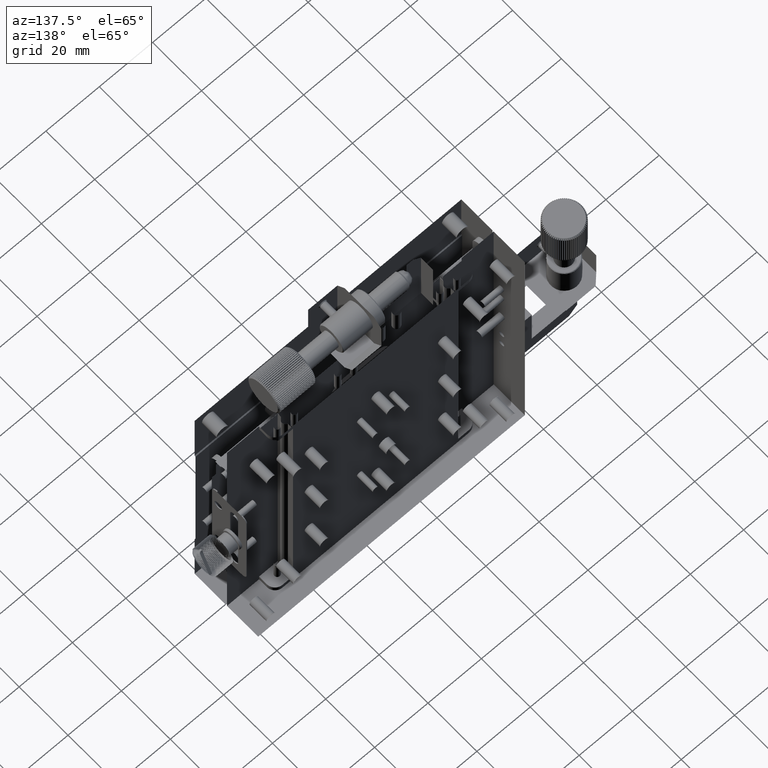
[diagram: clean part render]
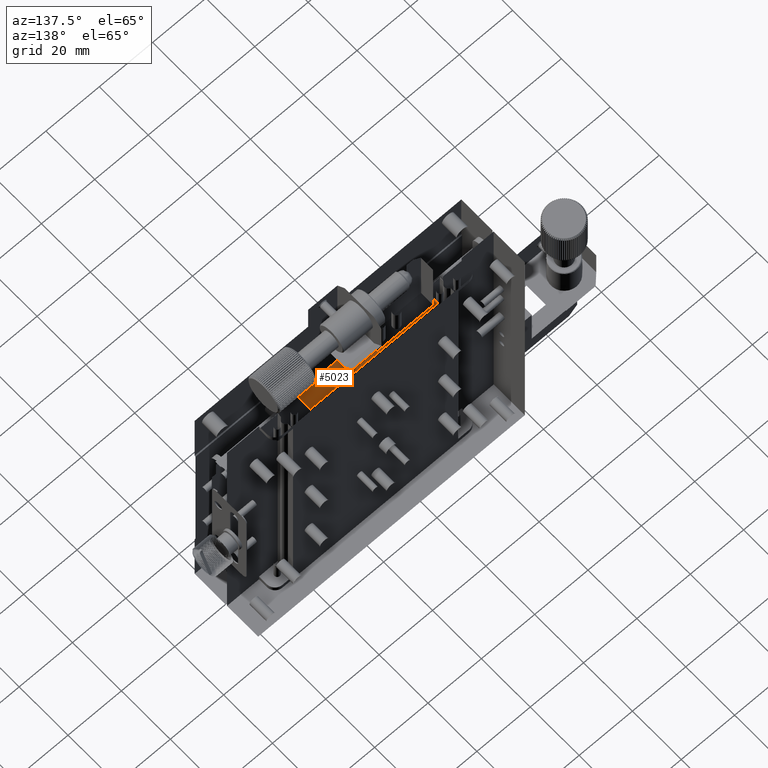
[diagram: same view with one face highlighted and labeled with its STEP entity id]
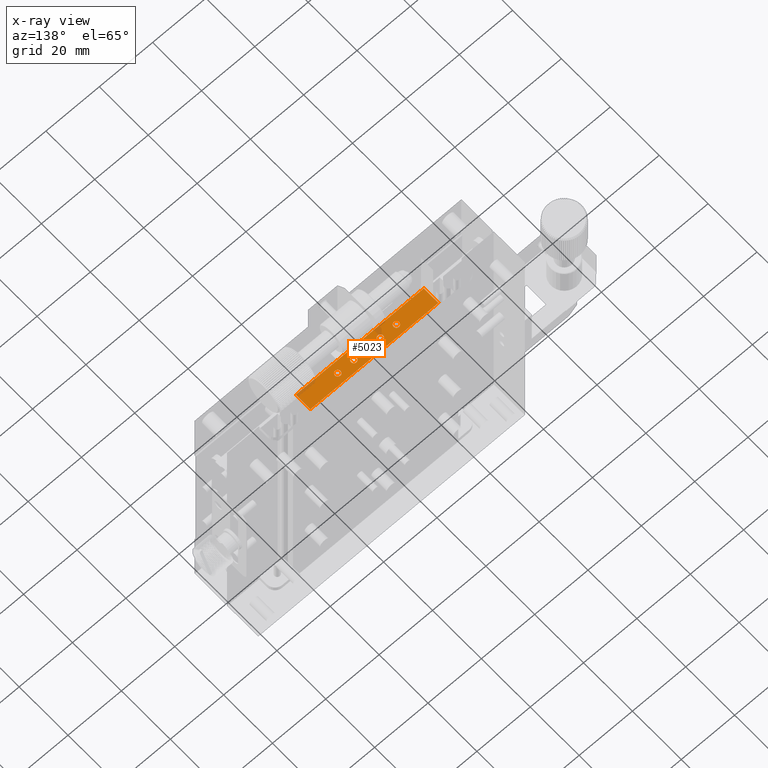
[diagram: x-ray of the same camera — body ghosted, the highlighted face saturated]
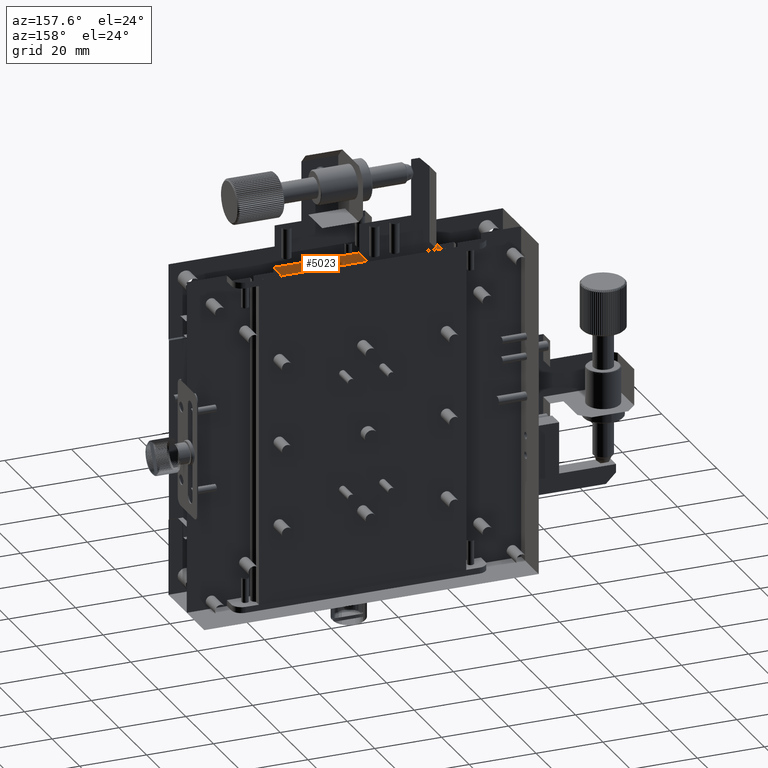
[diagram: same view with one face highlighted and labeled with its STEP entity id]
A machine part, auxiliary view. The second image highlights one B-rep face of the part: STEP entity #5023.
The next image is the same camera in x-ray: the body ghosted, the highlighted face saturated — about 4% of this face is hidden behind the body in this view.
A second angle (auxiliary view) of the same face is appended — the face is thin or edge-on in the first view.
In plain terms, the highlighted planar face has unit normal (0, 0, 1).
Its self-contained STEP definition (entity closure, byte-faithful):
#174 = LINE ( 'NONE', #25759, #21433 ) ;
#206 = CARTESIAN_POINT ( 'NONE',  ( -14.35932492328678123, 8.461813842482081682, 50.00000000000000000 ) ) ;
#230 = CARTESIAN_POINT ( 'NONE',  ( -8.437289163982038431, 8.854237392471311807, 49.99999999999999289 ) ) ;
#415 = FACE_BOUND ( 'NONE', #45608, .T. ) ;
#740 = EDGE_CURVE ( 'NONE', #42010, #20652, #174, .T. ) ;
#962 = CARTESIAN_POINT ( 'NONE',  ( -8.459295662923645764, 8.903800010002630216, 50.00000000000000711 ) ) ;
#1079 = CARTESIAN_POINT ( 'NONE',  ( -10.38533592614975554, 8.205528546687931524, 50.00000000000000000 ) ) ;
#1210 = CARTESIAN_POINT ( 'NONE',  ( -15.64078080533845139, 9.462757212372771676, 49.99999999999999289 ) ) ;
#1330 = CARTESIAN_POINT ( 'NONE',  ( -10.00923350665552647, 7.637258407699890839, 49.99999999999998579 ) ) ;
#1699 = CARTESIAN_POINT ( 'NONE',  ( -15.77672714999384063, 9.408858055908348561, 50.00000000000000000 ) ) ;
#1925 = CARTESIAN_POINT ( 'NONE',  ( -14.79027600530556796, 7.621106938102423456, 50.00000000000001421 ) ) ;
#1958 = CARTESIAN_POINT ( 'NONE',  ( -14.87574251884171517, 9.362948662365740304, 50.00000000000000711 ) ) ;
#2198 = CARTESIAN_POINT ( 'NONE',  ( -14.43728916398203843, 8.854237392471242529, 50.00000000000000000 ) ) ;
#2317 = VERTEX_POINT ( 'NONE', #38201 ) ;
#3402 = EDGE_CURVE ( 'NONE', #20652, #41781, #8409, .T. ) ;
#3843 = CARTESIAN_POINT ( 'NONE',  ( -15.70052241587792707, 7.486637596779109671, 50.00000000000000711 ) ) ;
#3894 = VERTEX_POINT ( 'NONE', #41481 ) ;
#3932 = CARTESIAN_POINT ( 'NONE',  ( -10.34384520546391251, 8.822700253889923516, 50.00000000000000711 ) ) ;
#4287 = CARTESIAN_POINT ( 'NONE',  ( -8.974306938210492746, 7.522225059223291765, 50.00000000000000000 ) ) ;
#4529 = CARTESIAN_POINT ( 'NONE',  ( -9.449321264623060657, 7.436780206478159627, 50.00000000000000000 ) ) ;
#4614 = CARTESIAN_POINT ( 'NONE',  ( 7.640675076713216995, 8.461813842482081682, 50.00000000000000000 ) ) ;
#4658 = CARTESIAN_POINT ( 'NONE',  ( -9.319328581951623391, 9.486847478486160057, 50.00000000000000711 ) ) ;
#4773 = CARTESIAN_POINT ( 'NONE',  ( -8.424804641109576053, 8.100927431074232743, 49.99999999999999289 ) ) ;
#5023 = ADVANCED_FACE ( 'NONE', ( #415, #11739, #10793, #22062, #14718 ), #11017, .F. ) ;
#5026 = CARTESIAN_POINT ( 'NONE',  ( -8.359324923286781228, 8.461813842482081682, 50.00000000000000000 ) ) ;
#5366 = CARTESIAN_POINT ( 'NONE',  ( -14.55976948850418573, 7.836905259113716937, 50.00000000000000711 ) ) ;
#5818 = DIRECTION ( 'NONE',  ( -0.000000000000000000, -0.000000000000000000, -1.000000000000000000 ) ) ;
#5825 = CARTESIAN_POINT ( 'NONE',  ( -28.38432492328676915, 11.46181384248208168, 50.00000000000000000 ) ) ;
#5858 = CARTESIAN_POINT ( 'NONE',  ( -14.39455876283175684, 8.191676105698782351, 50.00000000000000711 ) ) ;
#5892 = CARTESIAN_POINT ( 'NONE',  ( -15.22341919128706778, 9.477876831562856097, 50.00000000000000000 ) ) ;
#6072 = DIRECTION ( 'NONE',  ( 1.000000000000000000, 0.000000000000000000, -0.000000000000000000 ) ) ;
#6539 = DIRECTION ( 'NONE',  ( -0.000000000000000000, 1.000000000000000000, 0.000000000000000000 ) ) ;
#7294 = CARTESIAN_POINT ( 'NONE',  ( -15.73117127831653583, 7.497145396528023475, 50.00000000000000711 ) ) ;
#7457 = ORIENTED_EDGE ( 'NONE', *, *, #47652, .F. ) ;
#7540 = CARTESIAN_POINT ( 'NONE',  ( -16.33136068259150520, 8.069390292493025640, 49.99999999999998579 ) ) ;
#7629 = CARTESIAN_POINT ( 'NONE',  ( -10.37409108374178501, 8.731951579264732644, 49.99999999999999289 ) ) ;
#7767 = ORIENTED_EDGE ( 'NONE', *, *, #32719, .F. ) ;
#7856 = CARTESIAN_POINT ( 'NONE',  ( -9.826311090806777671, 9.386843102845464415, 50.00000000000001421 ) ) ;
#8114 = CARTESIAN_POINT ( 'NONE',  ( -10.40932492328675707, 8.461813842482081682, 50.00000000000000000 ) ) ;
#8222 = CARTESIAN_POINT ( 'NONE',  ( -8.368320797213158357, 8.300759206457602346, 50.00000000000000711 ) ) ;
#8409 = LINE ( 'NONE', #13069, #41218 ) ;
#8912 = AXIS2_PLACEMENT_3D ( 'NONE', #20808, #5818, #9992 ) ;
#9297 = CARTESIAN_POINT ( 'NONE',  ( -14.48319010340335211, 7.953231438037009049, 50.00000000000000711 ) ) ;
#9539 = CARTESIAN_POINT ( 'NONE',  ( -14.94233875576645509, 7.536784582118719378, 50.00000000000000711 ) ) ;
#9573 = CARTESIAN_POINT ( 'NONE',  ( -14.35932492328677768, 8.592333445843367556, 49.99999999999998579 ) ) ;
#9791 = CARTESIAN_POINT ( 'NONE',  ( -15.25433224061417548, 7.436881114489954925, 49.99999999999997868 ) ) ;
#9992 = DIRECTION ( 'NONE',  ( 1.000000000000000000, 0.000000000000000000, 0.000000000000000000 ) ) ;
#10662 = EDGE_LOOP ( 'NONE', ( #7457, #38523 ) ) ;
#10793 = FACE_BOUND ( 'NONE', #10662, .T. ) ;
#11017 = PLANE ( 'NONE',  #46023 ) ;
#11224 = CARTESIAN_POINT ( 'NONE',  ( -16.15904730767625352, 7.786914883798659481, 50.00000000000000000 ) ) ;
#11317 = CARTESIAN_POINT ( 'NONE',  ( -9.640780805338010850, 9.462757212372771676, 50.00000000000000000 ) ) ;
#11562 = CARTESIAN_POINT ( 'NONE',  ( -8.359324923286781228, 8.461813842482081682, 50.00000000000000000 ) ) ;
#11739 = FACE_BOUND ( 'NONE', #15932, .T. ) ;
#11899 = CARTESIAN_POINT ( 'NONE',  ( -10.32391370654542762, 8.051795857405616985, 49.99999999999999289 ) ) ;
#12040 = CARTESIAN_POINT ( 'NONE',  ( -10.28545974317044021, 8.970396246927581529, 50.00000000000002132 ) ) ;
#12398 = CARTESIAN_POINT ( 'NONE',  ( -10.33136068259149987, 8.069390292492823136, 50.00000000000000711 ) ) ;
#12522 = CARTESIAN_POINT ( 'NONE',  ( -14.45929566292374524, 8.903800010002637322, 50.00000000000001421 ) ) ;
#12736 = CARTESIAN_POINT ( 'NONE',  ( -14.40917705796211479, 8.145544556879670495, 49.99999999999999289 ) ) ;
#13019 = AXIS2_PLACEMENT_3D ( 'NONE', #13892, #43861, #29095 ) ;
#13069 = CARTESIAN_POINT ( 'NONE',  ( -28.38432492328676915, 4.961813842482081682, 50.00000000000000000 ) ) ;
#13231 = ORIENTED_EDGE ( 'NONE', *, *, #33737, .F. ) ;
#13254 = CARTESIAN_POINT ( 'NONE',  ( -16.40032904936039060, 8.622868478505210987, 50.00000000000000000 ) ) ;
#13347 = VECTOR ( 'NONE', #6072, 1000.000000000000000 ) ;
#13434 = VERTEX_POINT ( 'NONE', #44711 ) ;
#13503 = CARTESIAN_POINT ( 'NONE',  ( -14.35932492328678123, 8.461813842482081682, 50.00000000000000000 ) ) ;
#13674 = EDGE_LOOP ( 'NONE', ( #38569 ) ) ;
#13892 = CARTESIAN_POINT ( 'NONE',  ( 0.6156750767132299629, 8.461813842482081682, 50.00000000000000000 ) ) ;
#14134 = B_SPLINE_CURVE_WITH_KNOTS ( 'NONE', 3,
 ( #42715, #31647, #47366, #5858, #12736, #31897, #46641, #9297, #5366, #28693, #1925, #16919, #9539, #32624, #20840, #47125, #9791, #32852, #40947, #25224, #3843, #7294, #14187, #41196, #43917, #11224, #44637, #29158, #44876, #22273, #7540, #33088, #21793, #36537 ),
 .UNSPECIFIED., .F., .F.,
 ( 4, 1, 1, 2, 2, 2, 1, 1, 2, 2, 2, 1, 1, 2, 2, 2, 1, 1, 2, 2, 4 ),
 ( 0.000000000000000000, 0.06250000000000588418, 0.09375000000000865974, 0.1093750000000100475, 0.1250000000000114353, 0.2500000000000097145, 0.3125000000000091593, 0.3437500000000084377, 0.3593750000000085487, 0.3750000000000087153, 0.5000000000000098810, 0.5625000000000104361, 0.5937500000000123235, 0.6093750000000133227, 0.6250000000000142109, 0.7500000000000071054, 0.8125000000000041078, 0.8437500000000016653, 0.8593750000000013323, 0.8750000000000008882, 1.000000000000000000 ),
 .UNSPECIFIED. ) ;
#14187 = CARTESIAN_POINT ( 'NONE',  ( -15.74521133469454170, 7.502293560304843290, 49.99999999999999289 ) ) ;
#14718 = FACE_OUTER_BOUND ( 'NONE', #16225, .T. ) ;
#14940 = DIRECTION ( 'NONE',  ( 0.000000000000000000, 0.000000000000000000, 1.000000000000000000 ) ) ;
#14993 = CARTESIAN_POINT ( 'NONE',  ( -9.873510639141024114, 9.363888520937219795, 50.00000000000000711 ) ) ;
#15238 = CARTESIAN_POINT ( 'NONE',  ( -8.383313920423782761, 8.718099138276448556, 50.00000000000000000 ) ) ;
#15353 = CARTESIAN_POINT ( 'NONE',  ( -8.359324923286783005, 8.396732413132445672, 50.00000000000001421 ) ) ;
#15426 = DIRECTION ( 'NONE',  ( 1.000000000000000000, 0.000000000000000000, -0.000000000000000000 ) ) ;
#15482 = CARTESIAN_POINT ( 'NONE',  ( -8.609602538896924173, 9.136712801165367992, 50.00000000000000711 ) ) ;
#15593 = CARTESIAN_POINT ( 'NONE',  ( -9.745211334694641181, 7.502293560304884146, 50.00000000000001421 ) ) ;
#15828 = CARTESIAN_POINT ( 'NONE',  ( -10.40932492328675529, 8.331294239121563194, 49.99999999999999289 ) ) ;
#15932 = EDGE_LOOP ( 'NONE', ( #13231, #17959 ) ) ;
#15965 = CARTESIAN_POINT ( 'NONE',  ( -8.444736140028144433, 8.871831827558573025, 50.00000000000000711 ) ) ;
#16073 = CARTESIAN_POINT ( 'NONE',  ( -9.731171278316534057, 7.497145396528026140, 50.00000000000001421 ) ) ;
#16225 = EDGE_LOOP ( 'NONE', ( #23211, #30914, #29437, #7767 ) ) ;
#16319 = CARTESIAN_POINT ( 'NONE',  ( -10.15904730767669228, 7.786914883798874421, 50.00000000000000711 ) ) ;
#16695 = CARTESIAN_POINT ( 'NONE',  ( -16.37409108374178857, 8.731951579264375596, 50.00000000000000000 ) ) ;
#16919 = CARTESIAN_POINT ( 'NONE',  ( -14.89513920743203279, 7.559739164026977321, 49.99999999999999289 ) ) ;
#16950 = CARTESIAN_POINT ( 'NONE',  ( -14.60960253889704674, 9.136712801165375097, 49.99999999999999289 ) ) ;
#17959 = ORIENTED_EDGE ( 'NONE', *, *, #30972, .F. ) ;
#18930 = CARTESIAN_POINT ( 'NONE',  ( -9.037478568257549583, 9.426482288436215384, 50.00000000000002842 ) ) ;
#19118 = CIRCLE ( 'NONE', #8912, 1.024999999999987699 ) ;
#19279 = CARTESIAN_POINT ( 'NONE',  ( -9.127869041236889913, 7.460870472591067504, 50.00000000000000711 ) ) ;
#19523 = CARTESIAN_POINT ( 'NONE',  ( -9.545230655287900490, 7.445750853401582603, 50.00000000000000000 ) ) ;
#19646 = CARTESIAN_POINT ( 'NONE',  ( -9.023438511878765667, 9.421334124659150433, 50.00000000000001421 ) ) ;
#20024 = CARTESIAN_POINT ( 'NONE',  ( -8.359324923286781228, 8.461813842482081682, 50.00000000000000000 ) ) ;
#20623 = CARTESIAN_POINT ( 'NONE',  ( -15.51431760595772680, 9.486746570473886919, 50.00000000000000711 ) ) ;
#20652 = VERTEX_POINT ( 'NONE', #5825 ) ;
#20663 = B_SPLINE_CURVE_WITH_KNOTS ( 'NONE', 3,
 ( #39540, #31431, #13254, #16695, #35850, #31196, #46910, #46182, #35356, #43480, #32174, #23806, #24531, #27748, #1699, #1210, #20623, #20872, #5892, #34867, #39287, #27491, #35607, #1958, #31682, #16950, #27997, #47156, #12522, #31925, #2198, #43232, #9573, #13503 ),
 .UNSPECIFIED., .F., .F.,
 ( 4, 1, 1, 2, 2, 2, 1, 1, 2, 2, 2, 1, 1, 2, 2, 2, 1, 1, 2, 2, 4 ),
 ( 0.000000000000000000, 0.06249999999999886202, 0.09374999999999829303, 0.1093749999999983347, 0.1249999999999983902, 0.2500000000000033307, 0.3125000000000063283, 0.3437500000000074385, 0.3593750000000083267, 0.3750000000000092149, 0.5000000000000077716, 0.5625000000000062172, 0.5937500000000055511, 0.6093750000000057732, 0.6250000000000059952, 0.7500000000000086597, 0.8125000000000094369, 0.8437500000000102141, 0.8593750000000098810, 0.8750000000000095479, 1.000000000000000000 ),
 .UNSPECIFIED. ) ;
#20714 = EDGE_CURVE ( 'NONE', #41781, #13434, #48051, .T. ) ;
#20808 = CARTESIAN_POINT ( 'NONE',  ( 6.615675076713229075, 8.461813842482081682, 50.00000000000000000 ) ) ;
#20840 = CARTESIAN_POINT ( 'NONE',  ( -14.99192269657947740, 7.514769629055856548, 50.00000000000000000 ) ) ;
#20872 = CARTESIAN_POINT ( 'NONE',  ( -15.31932858195129477, 9.486847478486160057, 50.00000000000000000 ) ) ;
#21420 = EDGE_CURVE ( 'NONE', #2317, #43505, #20663, .T. ) ;
#21433 = VECTOR ( 'NONE', #33609, 1000.000000000000000 ) ;
#21793 = CARTESIAN_POINT ( 'NONE',  ( -16.40932492328676062, 8.331294239119905853, 49.99999999999998579 ) ) ;
#22062 = FACE_BOUND ( 'NONE', #13674, .T. ) ;
#22100 = CARTESIAN_POINT ( 'NONE',  ( -10.40932492328675707, 8.461813842482081682, 50.00000000000000000 ) ) ;
#22273 = CARTESIAN_POINT ( 'NONE',  ( -16.32391370654523044, 8.051795857405524615, 50.00000000000000000 ) ) ;
#22549 = B_SPLINE_CURVE_WITH_KNOTS ( 'NONE', 3,
 ( #8114, #33654, #27255, #7629, #37588, #42245, #3932, #12040, #22605, #38300, #26276, #14993, #7856, #44975, #45208, #11317, #34377, #4658, #23083, #30438, #41285, #18930, #19646, #30202, #42004, #15482, #34615, #33894, #962, #15965, #230, #15238, #37348, #11562 ),
 .UNSPECIFIED., .F., .F.,
 ( 4, 1, 1, 2, 2, 2, 1, 1, 2, 2, 2, 1, 1, 2, 2, 2, 1, 1, 2, 2, 4 ),
 ( 0.000000000000000000, 0.06249999999999522604, 0.09374999999999300559, 0.1093749999999927003, 0.1249999999999923950, 0.2499999999999913958, 0.3124999999999914513, 0.3437499999999910627, 0.3593749999999911737, 0.3749999999999913403, 0.4999999999999900080, 0.5624999999999893419, 0.5937499999999891198, 0.6093749999999896749, 0.6249999999999901190, 0.7499999999999942268, 0.8124999999999952260, 0.8437499999999956701, 0.8593749999999960032, 0.8749999999999962252, 1.000000000000000000 ),
 .UNSPECIFIED. ) ;
#22605 = CARTESIAN_POINT ( 'NONE',  ( -10.20888035807008976, 9.086722425850394913, 50.00000000000000000 ) ) ;
#22703 = CARTESIAN_POINT ( 'NONE',  ( -9.654350982052561037, 7.472003534771902267, 50.00000000000000000 ) ) ;
#23083 = CARTESIAN_POINT ( 'NONE',  ( -9.223419191287639762, 9.477876831562856097, 50.00000000000000711 ) ) ;
#23193 = CARTESIAN_POINT ( 'NONE',  ( -8.790276005305893037, 7.621106938102292006, 50.00000000000000000 ) ) ;
#23211 = ORIENTED_EDGE ( 'NONE', *, *, #20714, .F. ) ;
#23806 = CARTESIAN_POINT ( 'NONE',  ( -15.87351063914172578, 9.363888520936821891, 50.00000000000000711 ) ) ;
#24531 = CARTESIAN_POINT ( 'NONE',  ( -15.82631109080722531, 9.386843102845205067, 49.99999999999999289 ) ) ;
#24713 = CARTESIAN_POINT ( 'NONE',  ( -4.384324923286770037, 5.461813842482080794, 50.00000000000000000 ) ) ;
#25224 = CARTESIAN_POINT ( 'NONE',  ( -15.65435098205256104, 7.472003534771901379, 50.00000000000000000 ) ) ;
#25514 = VERTEX_POINT ( 'NONE', #20024 ) ;
#25759 = CARTESIAN_POINT ( 'NONE',  ( -38.21957479672279590, 11.46181384248208168, 50.00000000000000000 ) ) ;
#26238 = VERTEX_POINT ( 'NONE', #4614 ) ;
#26276 = CARTESIAN_POINT ( 'NONE',  ( -9.978373841267334399, 9.302520746861784318, 50.00000000000000000 ) ) ;
#27255 = CARTESIAN_POINT ( 'NONE',  ( -10.40032904936038172, 8.622868478505692380, 49.99999999999999289 ) ) ;
#27491 = CARTESIAN_POINT ( 'NONE',  ( -15.03747856825739326, 9.426482288436213608, 50.00000000000000711 ) ) ;
#27637 = B_SPLINE_CURVE_WITH_KNOTS ( 'NONE', 3,
 ( #5026, #15353, #8222, #34732, #37935, #42613, #4773, #46290, #30318, #34981, #23193, #38175, #42360, #4287, #38416, #19279, #45806, #4529, #19523, #22703, #34249, #16073, #15593, #30549, #1330, #16319, #31304, #45551, #34491, #11899, #12398, #1079, #15828, #30799 ),
 .UNSPECIFIED., .F., .F.,
 ( 4, 1, 1, 2, 2, 2, 1, 1, 2, 2, 2, 1, 1, 2, 2, 2, 1, 1, 2, 2, 4 ),
 ( 0.000000000000000000, 0.06250000000000384415, 0.09375000000000593969, 0.1093750000000061617, 0.1250000000000063838, 0.2500000000000116573, 0.3125000000000150990, 0.3437500000000159872, 0.3593750000000163758, 0.3750000000000167644, 0.5000000000000195399, 0.5625000000000200950, 0.5937500000000203171, 0.6093750000000195399, 0.6250000000000186517, 0.7500000000000150990, 0.8125000000000131006, 0.8437500000000116573, 0.8593750000000106581, 0.8750000000000096589, 1.000000000000000000 ),
 .UNSPECIFIED. ) ;
#27748 = CARTESIAN_POINT ( 'NONE',  ( -15.79434290836321075, 9.401402625740702845, 50.00000000000000000 ) ) ;
#27997 = CARTESIAN_POINT ( 'NONE',  ( -14.54361801890780370, 9.055862760463783800, 50.00000000000001421 ) ) ;
#28693 = CARTESIAN_POINT ( 'NONE',  ( -14.70942596460376173, 7.687091458091960483, 50.00000000000000711 ) ) ;
#28810 = ORIENTED_EDGE ( 'NONE', *, *, #46498, .F. ) ;
#29095 = DIRECTION ( 'NONE',  ( 1.000000000000000000, 0.000000000000000000, 0.000000000000000000 ) ) ;
#29158 = CARTESIAN_POINT ( 'NONE',  ( -16.28639960174103862, 7.972628126626805312, 50.00000000000000000 ) ) ;
#29437 = ORIENTED_EDGE ( 'NONE', *, *, #740, .F. ) ;
#30202 = CARTESIAN_POINT ( 'NONE',  ( -8.875742518842560713, 9.362948662366353147, 49.99999999999999289 ) ) ;
#30318 = CARTESIAN_POINT ( 'NONE',  ( -8.559769488503807366, 7.836905259113865263, 50.00000000000000000 ) ) ;
#30438 = CARTESIAN_POINT ( 'NONE',  ( -9.114298864522481836, 9.451624150192467155, 50.00000000000000711 ) ) ;
#30549 = CARTESIAN_POINT ( 'NONE',  ( -9.892907327732034517, 7.560679022598861820, 50.00000000000000000 ) ) ;
#30799 = CARTESIAN_POINT ( 'NONE',  ( -10.40932492328675707, 8.461813842482081682, 50.00000000000000000 ) ) ;
#30914 = ORIENTED_EDGE ( 'NONE', *, *, #3402, .F. ) ;
#30972 = EDGE_CURVE ( 'NONE', #36227, #25514, #22549, .T. ) ;
#31196 = CARTESIAN_POINT ( 'NONE',  ( -16.34897760236398412, 8.808700082517733065, 50.00000000000000000 ) ) ;
#31304 = CARTESIAN_POINT ( 'NONE',  ( -10.22503182766608276, 7.867764924500526114, 50.00000000000000000 ) ) ;
#31431 = CARTESIAN_POINT ( 'NONE',  ( -16.40932492328676418, 8.526895271830948531, 50.00000000000000711 ) ) ;
#31647 = CARTESIAN_POINT ( 'NONE',  ( -14.35932492328678123, 8.396732413132449224, 50.00000000000002132 ) ) ;
#31682 = CARTESIAN_POINT ( 'NONE',  ( -14.75941633991761748, 9.286369277264105548, 50.00000000000000000 ) ) ;
#31897 = CARTESIAN_POINT ( 'NONE',  ( -14.41967224420955418, 8.114927602446066146, 49.99999999999999289 ) ) ;
#31925 = CARTESIAN_POINT ( 'NONE',  ( -14.44473614002819950, 8.871831827558578354, 50.00000000000000000 ) ) ;
#32174 = CARTESIAN_POINT ( 'NONE',  ( -15.97837384126827054, 9.302520746861249634, 50.00000000000000711 ) ) ;
#32624 = CARTESIAN_POINT ( 'NONE',  ( -14.97430693821040926, 7.522225059223328181, 50.00000000000000711 ) ) ;
#32719 = EDGE_CURVE ( 'NONE', #13434, #42010, #40180, .T. ) ;
#32852 = CARTESIAN_POINT ( 'NONE',  ( -15.44932126462306243, 7.436780206478156963, 49.99999999999998579 ) ) ;
#33088 = CARTESIAN_POINT ( 'NONE',  ( -16.38533592614976087, 8.205528546686268854, 49.99999999999999289 ) ) ;
#33609 = DIRECTION ( 'NONE',  ( -1.000000000000000000, -0.000000000000000000, -0.000000000000000000 ) ) ;
#33654 = CARTESIAN_POINT ( 'NONE',  ( -10.40932492328675885, 8.526895271831220313, 50.00000000000002132 ) ) ;
#33737 = EDGE_CURVE ( 'NONE', #25514, #36227, #27637, .T. ) ;
#33894 = CARTESIAN_POINT ( 'NONE',  ( -8.482250244832028940, 8.950999558337176865, 50.00000000000000000 ) ) ;
#34164 = CIRCLE ( 'NONE', #13019, 1.024999999999988587 ) ;
#34249 = CARTESIAN_POINT ( 'NONE',  ( -9.700522415877925297, 7.486637596779108783, 50.00000000000000711 ) ) ;
#34377 = CARTESIAN_POINT ( 'NONE',  ( -9.514317605957067769, 9.486746570473883367, 49.99999999999998579 ) ) ;
#34491 = CARTESIAN_POINT ( 'NONE',  ( -10.30935418364996359, 8.019827674961597097, 50.00000000000000000 ) ) ;
#34615 = CARTESIAN_POINT ( 'NONE',  ( -8.543618018907597644, 9.055862760463769590, 50.00000000000000000 ) ) ;
#34732 = CARTESIAN_POINT ( 'NONE',  ( -8.394558762831756837, 8.191676105698777022, 50.00000000000000000 ) ) ;
#34867 = CARTESIAN_POINT ( 'NONE',  ( -15.11429886452204840, 9.451624150192467155, 50.00000000000000000 ) ) ;
#34981 = CARTESIAN_POINT ( 'NONE',  ( -8.709425964603950021, 7.687091458091883212, 50.00000000000000000 ) ) ;
#35356 = CARTESIAN_POINT ( 'NONE',  ( -16.20888035806902039, 9.086722425851005980, 49.99999999999999289 ) ) ;
#35607 = CARTESIAN_POINT ( 'NONE',  ( -15.02343851187886692, 9.421334124659225040, 50.00000000000000000 ) ) ;
#35850 = CARTESIAN_POINT ( 'NONE',  ( -16.35947278861143062, 8.778083128083844500, 50.00000000000000711 ) ) ;
#36073 = VECTOR ( 'NONE', #6539, 1000.000000000000000 ) ;
#36227 = VERTEX_POINT ( 'NONE', #22100 ) ;
#36537 = CARTESIAN_POINT ( 'NONE',  ( -16.40932492328676062, 8.461813842482081682, 50.00000000000000000 ) ) ;
#36979 = CARTESIAN_POINT ( 'NONE',  ( 19.61567507671323085, 4.961813842482081682, 50.00000000000000000 ) ) ;
#37348 = CARTESIAN_POINT ( 'NONE',  ( -8.359324923286781228, 8.592333445842815109, 49.99999999999997868 ) ) ;
#37588 = CARTESIAN_POINT ( 'NONE',  ( -10.35947278861142351, 8.778083128084075426, 50.00000000000000711 ) ) ;
#37935 = CARTESIAN_POINT ( 'NONE',  ( -8.409177057962114787, 8.145544556879670495, 50.00000000000000000 ) ) ;
#38175 = CARTESIAN_POINT ( 'NONE',  ( -8.895139207432277928, 7.559739164026879621, 49.99999999999998579 ) ) ;
#38201 = CARTESIAN_POINT ( 'NONE',  ( -16.40932492328676062, 8.461813842482081682, 50.00000000000000000 ) ) ;
#38300 = CARTESIAN_POINT ( 'NONE',  ( -10.05922388196941597, 9.236536226872226862, 50.00000000000000000 ) ) ;
#38416 = CARTESIAN_POINT ( 'NONE',  ( -8.991922696579473850, 7.514769629055857436, 50.00000000000000711 ) ) ;
#38473 = CARTESIAN_POINT ( 'NONE',  ( -28.38432492328676915, 5.461813842482079906, 50.00000000000000000 ) ) ;
#38523 = ORIENTED_EDGE ( 'NONE', *, *, #21420, .F. ) ;
#38569 = ORIENTED_EDGE ( 'NONE', *, *, #41844, .F. ) ;
#39287 = CARTESIAN_POINT ( 'NONE',  ( -15.06812743069630223, 9.436990088185185144, 50.00000000000000000 ) ) ;
#39540 = CARTESIAN_POINT ( 'NONE',  ( -16.40932492328676062, 8.461813842482081682, 50.00000000000000000 ) ) ;
#40180 = LINE ( 'NONE', #36979, #36073 ) ;
#40947 = CARTESIAN_POINT ( 'NONE',  ( -15.54523065528790049, 7.445750853401586156, 50.00000000000000000 ) ) ;
#41196 = CARTESIAN_POINT ( 'NONE',  ( -15.89290732773279302, 7.560679022599162913, 50.00000000000000000 ) ) ;
#41218 = VECTOR ( 'NONE', #42799, 1000.000000000000000 ) ;
#41285 = CARTESIAN_POINT ( 'NONE',  ( -9.068127430696577562, 9.436990088185181591, 50.00000000000000000 ) ) ;
#41481 = CARTESIAN_POINT ( 'NONE',  ( 1.640675076713218550, 8.461813842482081682, 50.00000000000000000 ) ) ;
#41781 = VERTEX_POINT ( 'NONE', #38473 ) ;
#41844 = EDGE_CURVE ( 'NONE', #26238, #26238, #19118, .T. ) ;
#42004 = CARTESIAN_POINT ( 'NONE',  ( -8.759416339917855510, 9.286369277264114430, 49.99999999999997868 ) ) ;
#42010 = VERTEX_POINT ( 'NONE', #47805 ) ;
#42245 = CARTESIAN_POINT ( 'NONE',  ( -10.34897760236398412, 8.808700082517862739, 50.00000000000002132 ) ) ;
#42360 = CARTESIAN_POINT ( 'NONE',  ( -8.942338755766614966, 7.536784582118658093, 50.00000000000000711 ) ) ;
#42613 = CARTESIAN_POINT ( 'NONE',  ( -8.419672244209554179, 8.114927602446066146, 50.00000000000000711 ) ) ;
#42715 = CARTESIAN_POINT ( 'NONE',  ( -14.35932492328678123, 8.461813842482081682, 50.00000000000000000 ) ) ;
#42799 = DIRECTION ( 'NONE',  ( 0.000000000000000000, -1.000000000000000000, -0.000000000000000000 ) ) ;
#43232 = CARTESIAN_POINT ( 'NONE',  ( -14.38331392042378809, 8.718099138277008109, 50.00000000000000711 ) ) ;
#43480 = CARTESIAN_POINT ( 'NONE',  ( -16.05922388196994888, 9.236536226871924882, 50.00000000000000000 ) ) ;
#43505 = VERTEX_POINT ( 'NONE', #206 ) ;
#43861 = DIRECTION ( 'NONE',  ( -0.000000000000000000, -0.000000000000000000, -1.000000000000000000 ) ) ;
#43917 = CARTESIAN_POINT ( 'NONE',  ( -16.00923350665641109, 7.637258407700318052, 50.00000000000000000 ) ) ;
#44637 = CARTESIAN_POINT ( 'NONE',  ( -16.22503182766531893, 7.867764924500153079, 50.00000000000000711 ) ) ;
#44711 = CARTESIAN_POINT ( 'NONE',  ( 19.61567507671323085, 5.461813842482079906, 50.00000000000000000 ) ) ;
#44876 = CARTESIAN_POINT ( 'NONE',  ( -16.30935418364960299, 8.019827674961417685, 50.00000000000000000 ) ) ;
#44975 = CARTESIAN_POINT ( 'NONE',  ( -9.794342908362965616, 9.401402625740848507, 50.00000000000000711 ) ) ;
#45157 = CARTESIAN_POINT ( 'NONE',  ( -4.384324923286770037, 4.961813842482081682, 50.00000000000000000 ) ) ;
#45208 = CARTESIAN_POINT ( 'NONE',  ( -9.776727149993892141, 9.408858055908346785, 50.00000000000000000 ) ) ;
#45551 = CARTESIAN_POINT ( 'NONE',  ( -10.28639960174161416, 7.972628126627082423, 50.00000000000000711 ) ) ;
#45608 = EDGE_LOOP ( 'NONE', ( #28810 ) ) ;
#45806 = CARTESIAN_POINT ( 'NONE',  ( -9.254332240614179028, 7.436881114489956701, 49.99999999999999289 ) ) ;
#46023 = AXIS2_PLACEMENT_3D ( 'NONE', #45157, #14940, #15426 ) ;
#46182 = CARTESIAN_POINT ( 'NONE',  ( -16.28545974317113831, 8.970396246926426898, 50.00000000000000000 ) ) ;
#46290 = CARTESIAN_POINT ( 'NONE',  ( -8.483190103403504878, 7.953231438036634238, 50.00000000000000000 ) ) ;
#46498 = EDGE_CURVE ( 'NONE', #3894, #3894, #34164, .T. ) ;
#46641 = CARTESIAN_POINT ( 'NONE',  ( -14.42480464110959204, 8.100927431074190110, 50.00000000000000000 ) ) ;
#46910 = CARTESIAN_POINT ( 'NONE',  ( -16.34384520546382547, 8.822700253890067401, 50.00000000000000000 ) ) ;
#47125 = CARTESIAN_POINT ( 'NONE',  ( -15.12786904123688636, 7.460870472591068392, 49.99999999999999289 ) ) ;
#47156 = CARTESIAN_POINT ( 'NONE',  ( -14.48225024483218704, 8.950999558337187523, 50.00000000000000711 ) ) ;
#47366 = CARTESIAN_POINT ( 'NONE',  ( -14.36832079721315303, 8.300759206457604122, 50.00000000000000000 ) ) ;
#47652 = EDGE_CURVE ( 'NONE', #43505, #2317, #14134, .T. ) ;
#47805 = CARTESIAN_POINT ( 'NONE',  ( 19.61567507671323085, 11.46181384248208168, 50.00000000000000000 ) ) ;
#48051 = LINE ( 'NONE', #24713, #13347 ) ;